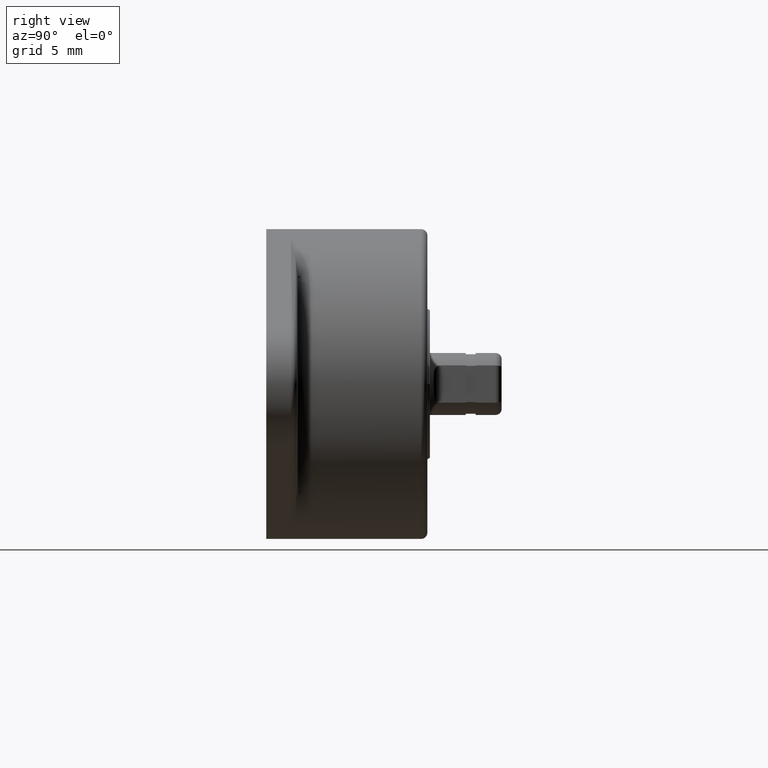
[diagram: clean part render]
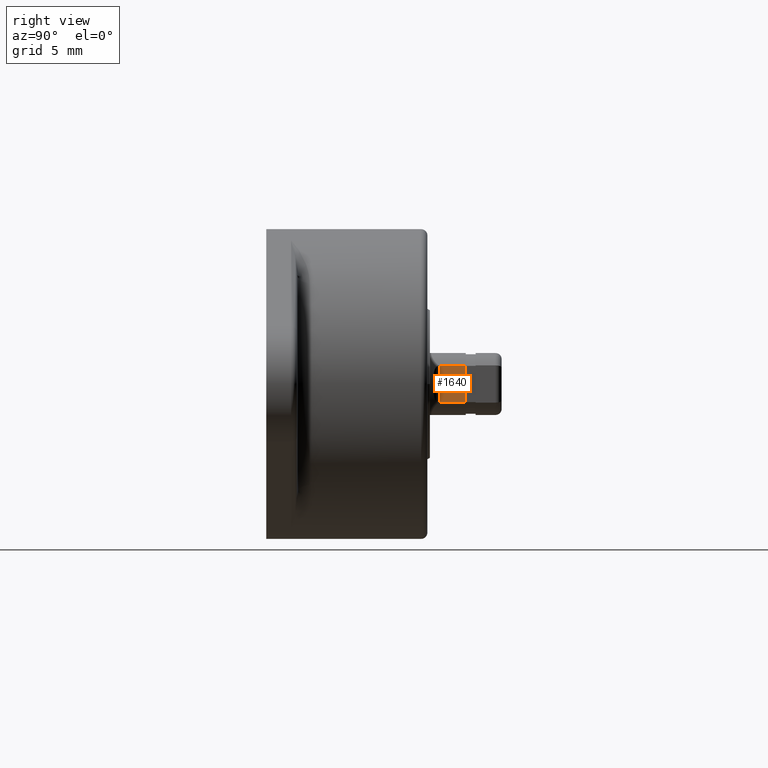
[diagram: same view with one face highlighted and labeled with its STEP entity id]
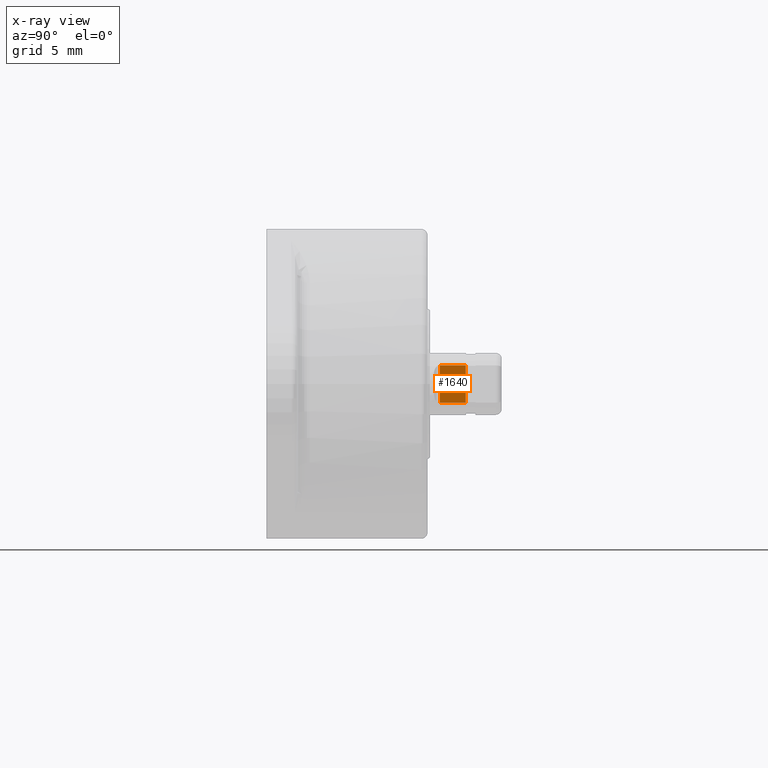
[diagram: x-ray of the same camera — body ghosted, the highlighted face saturated]
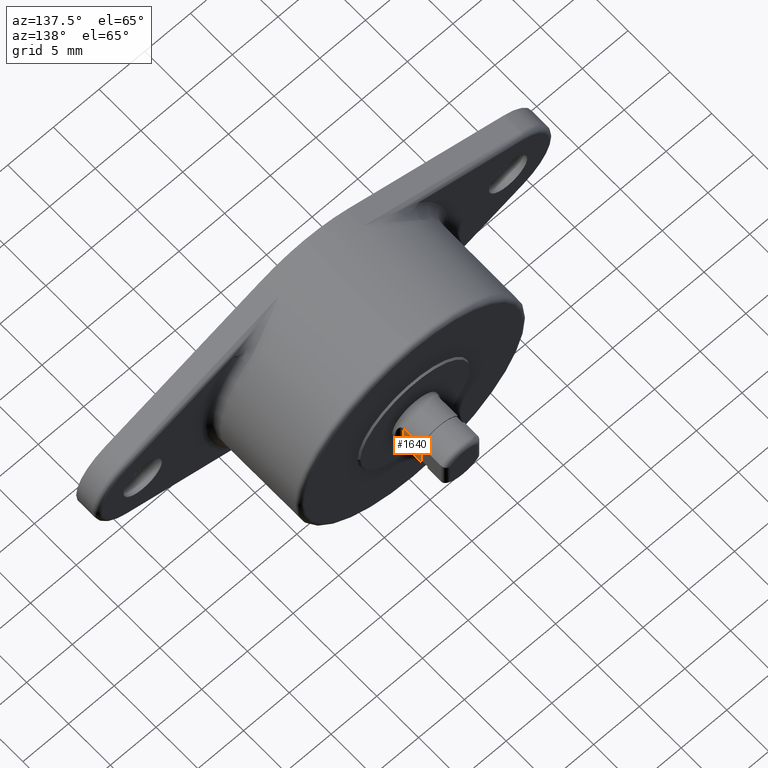
[diagram: same view with one face highlighted and labeled with its STEP entity id]
A machine part, right view. The second image highlights one B-rep face of the part: STEP entity #1640.
The next image is the same camera in x-ray: the body ghosted, the highlighted face saturated — about 0% of this face is hidden behind the body in this view.
A second angle (auxiliary view) of the same face is appended — the face is thin or edge-on in the first view.
In plain terms, the highlighted planar face has unit normal (-1, 0, 0).
Its self-contained STEP definition (entity closure, byte-faithful):
#22 = VECTOR ( 'NONE', #1788, 1000.000000000000000 ) ;
#36 = FACE_OUTER_BOUND ( 'NONE', #1196, .T. ) ;
#121 = DIRECTION ( 'NONE',  ( -0.0000000000000000000, 1.000000000000000000, -0.0000000000000000000 ) ) ;
#137 = VERTEX_POINT ( 'NONE', #1238 ) ;
#166 = CARTESIAN_POINT ( 'NONE',  ( 1.999999999998791000, -0.001024999999998249500, 1.500000000411819000 ) ) ;
#180 = LINE ( 'NONE', #1964, #555 ) ;
#343 = EDGE_CURVE ( 'NONE', #1070, #137, #1380, .T. ) ;
#425 = CARTESIAN_POINT ( 'NONE',  ( 1.999999999998791000, 14.00000000000000000, -1.500000000001612500 ) ) ;
#504 = CARTESIAN_POINT ( 'NONE',  ( 1.999999999998791000, 16.10000000000000100, -1.500000000001612500 ) ) ;
#555 = VECTOR ( 'NONE', #121, 1000.000000000000000 ) ;
#604 = CARTESIAN_POINT ( 'NONE',  ( 1.999999999998791000, -0.001024999999998249500, -1.500000000001612500 ) ) ;
#650 = EDGE_CURVE ( 'NONE', #1674, #137, #1654, .T. ) ;
#714 = CARTESIAN_POINT ( 'NONE',  ( 2.000000000000000000, 14.00000000000000000, 0.0000000000000000000 ) ) ;
#722 = ORIENTED_EDGE ( 'NONE', *, *, #650, .T. ) ;
#755 = DIRECTION ( 'NONE',  ( 0.0000000000000000000, 0.0000000000000000000, 1.000000000000000000 ) ) ;
#772 = ORIENTED_EDGE ( 'NONE', *, *, #343, .F. ) ;
#1047 = EDGE_CURVE ( 'NONE', #1503, #1070, #1574, .T. ) ;
#1070 = VERTEX_POINT ( 'NONE', #1642 ) ;
#1196 = EDGE_LOOP ( 'NONE', ( #1400, #722, #772, #1204 ) ) ;
#1204 = ORIENTED_EDGE ( 'NONE', *, *, #1047, .F. ) ;
#1225 = VECTOR ( 'NONE', #1585, 1000.000000000000000 ) ;
#1236 = DIRECTION ( 'NONE',  ( -0.0000000000000000000, 1.000000000000000000, -0.0000000000000000000 ) ) ;
#1238 = CARTESIAN_POINT ( 'NONE',  ( 1.999999999998791000, 16.10000000000000100, 1.500000000001612000 ) ) ;
#1380 = LINE ( 'NONE', #166, #1433 ) ;
#1400 = ORIENTED_EDGE ( 'NONE', *, *, #1550, .T. ) ;
#1433 = VECTOR ( 'NONE', #1236, 1000.000000000000000 ) ;
#1447 = AXIS2_PLACEMENT_3D ( 'NONE', #604, #1687, #755 ) ;
#1503 = VERTEX_POINT ( 'NONE', #425 ) ;
#1521 = PLANE ( 'NONE',  #1447 ) ;
#1550 = EDGE_CURVE ( 'NONE', #1503, #1674, #180, .T. ) ;
#1574 = LINE ( 'NONE', #714, #22 ) ;
#1585 = DIRECTION ( 'NONE',  ( 0.0000000000000000000, 0.0000000000000000000, 1.000000000000000000 ) ) ;
#1640 = ADVANCED_FACE ( 'NONE', ( #36 ), #1521, .F. ) ;
#1642 = CARTESIAN_POINT ( 'NONE',  ( 1.999999999998791000, 14.00000000000000000, 1.500000000411819000 ) ) ;
#1654 = LINE ( 'NONE', #504, #1225 ) ;
#1674 = VERTEX_POINT ( 'NONE', #1699 ) ;
#1687 = DIRECTION ( 'NONE',  ( -1.000000000000000000, 0.0000000000000000000, 0.0000000000000000000 ) ) ;
#1699 = CARTESIAN_POINT ( 'NONE',  ( 1.999999999998791000, 16.10000000000000100, -1.500000000001612500 ) ) ;
#1788 = DIRECTION ( 'NONE',  ( 0.0000000000000000000, 0.0000000000000000000, 1.000000000000000000 ) ) ;
#1964 = CARTESIAN_POINT ( 'NONE',  ( 1.999999999998791000, -0.001024999999998249500, -1.500000000001612500 ) ) ;